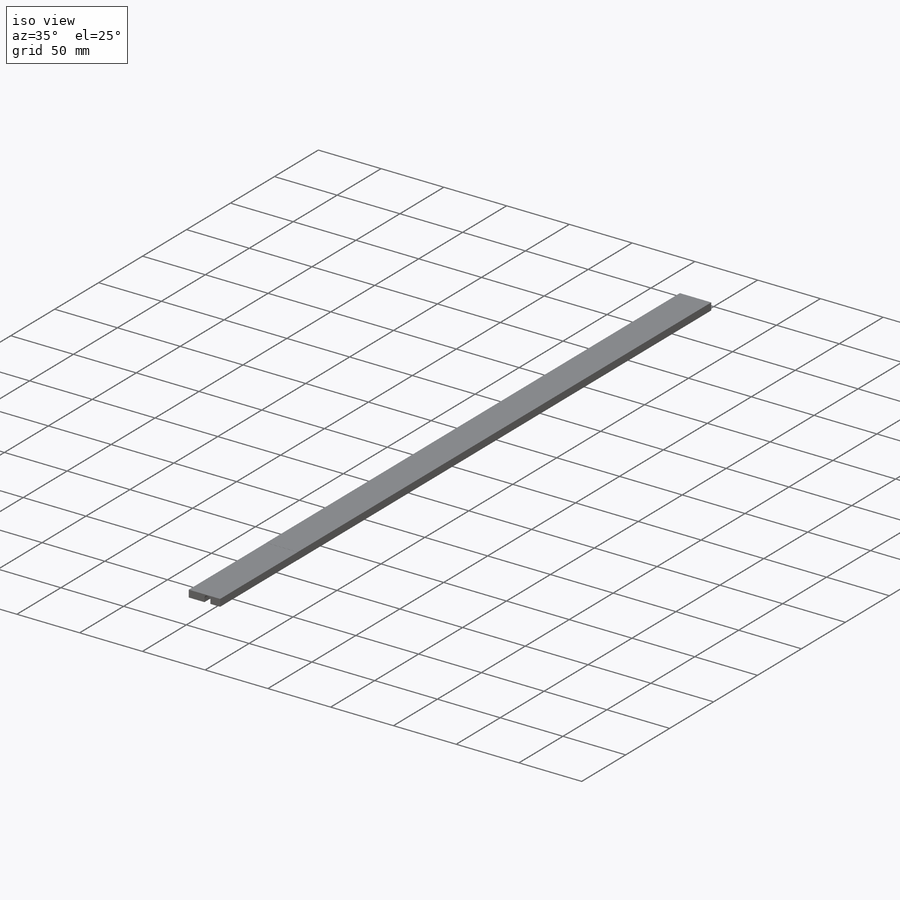
[diagram: iso view]
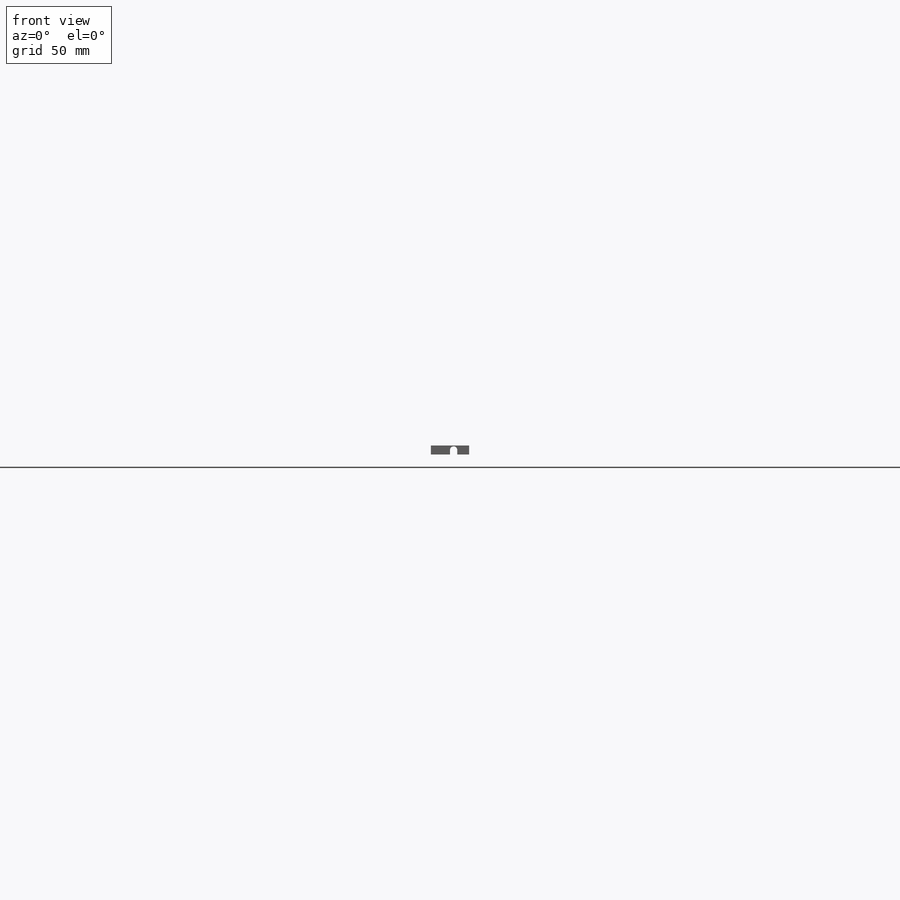
[diagram: front view]
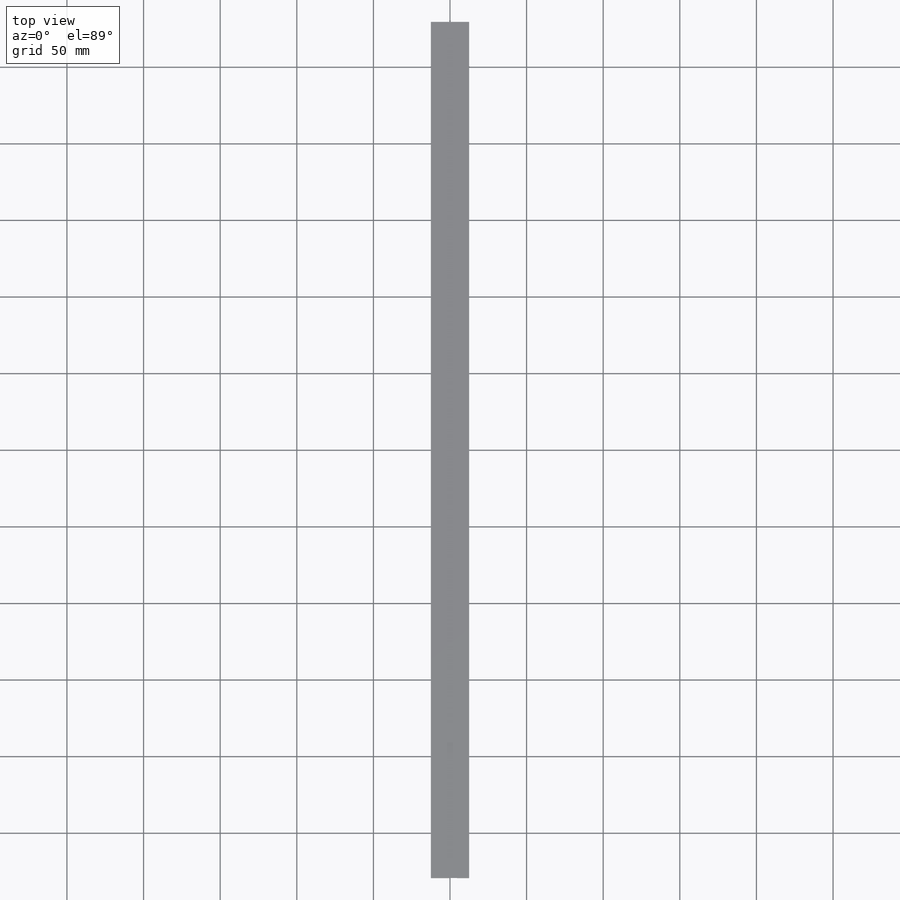
[diagram: top view]
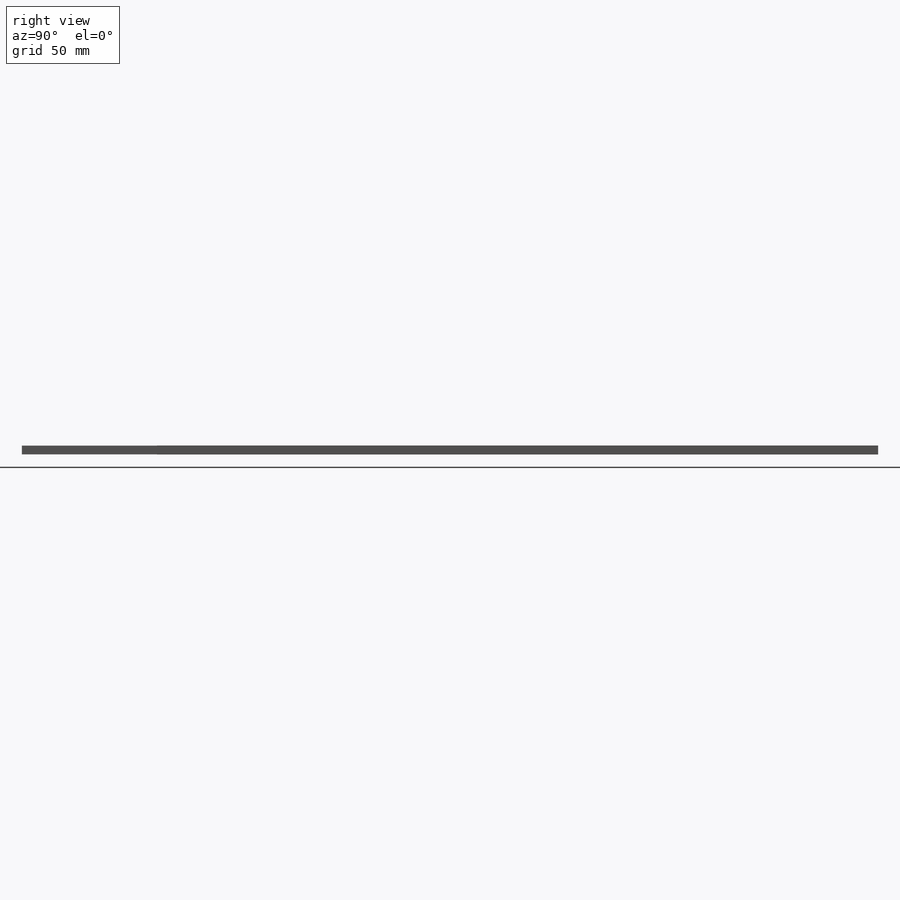
[diagram: right view]
SOLIDWORKS PART (.sldprt)
format: sldprt  version: not decoded by parser v0  size: 200,192 bytes
history: native  units: mm
features: sketch x4, extrude x2, cut_extrude x2, material x1 (+11 scaffold rows collapsed)
feature tree (20):
  scaffold x11  (default folders/planes/origin — collapsed)
  material  "CFOAM 20"
  sketch  "Sketch1"  dims[D1=25.0mm D2=5.8mm]
  extrude  "Extrude1"  Depth=518.8mm
  sketch  "Sketch6"  dims[D1=20.0mm D2=20.0mm]
  extrude  "Boss-Extrude2"  [1 undecoded]
  sketch  "Sketch7"  dims[c1.D1=4.7625mm c1.D2=8.0mm c1.D3=37.5mm c2.D2=14.881mm c2.D3=2.8778mm]
  cut_extrude  "Cut-Extrude2"  [1 undecoded]
  sketch  "Sketch8"  dims[D1=88.25mm D2=~0.06858mm D3=~0.06858mm]
  cut_extrude  "Cut-Extrude3"  [1 undecoded]
decode coverage: 5 of 8 modeling features carry decoded parameters
note: ~ marks probable driven/reference dimensions
note: 3 parameter values undecoded
summary: no parameter record found for 3 features
note: suppression state not decoded; provenance and decode notes live in map.json
